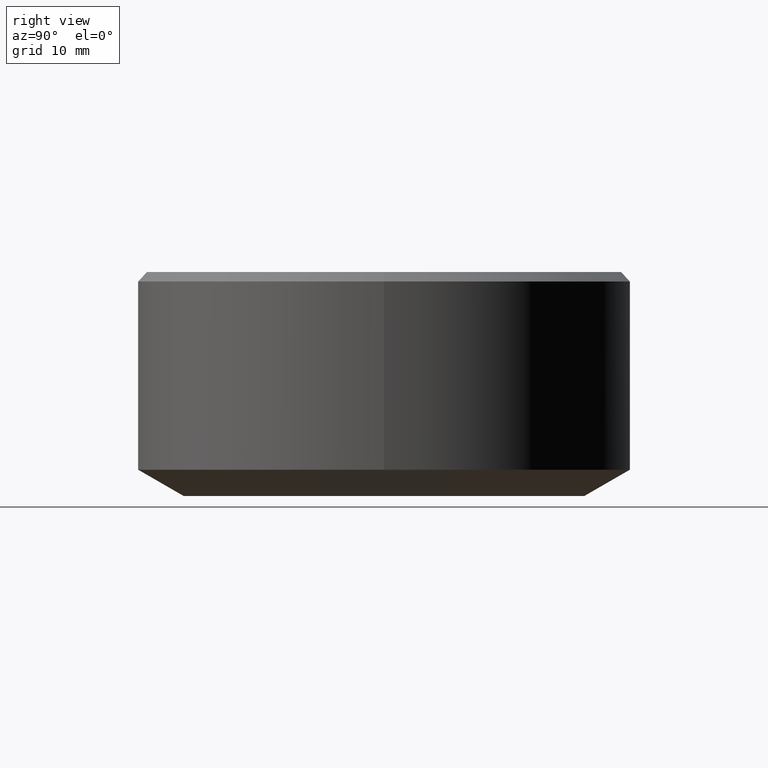
[diagram: clean part render]
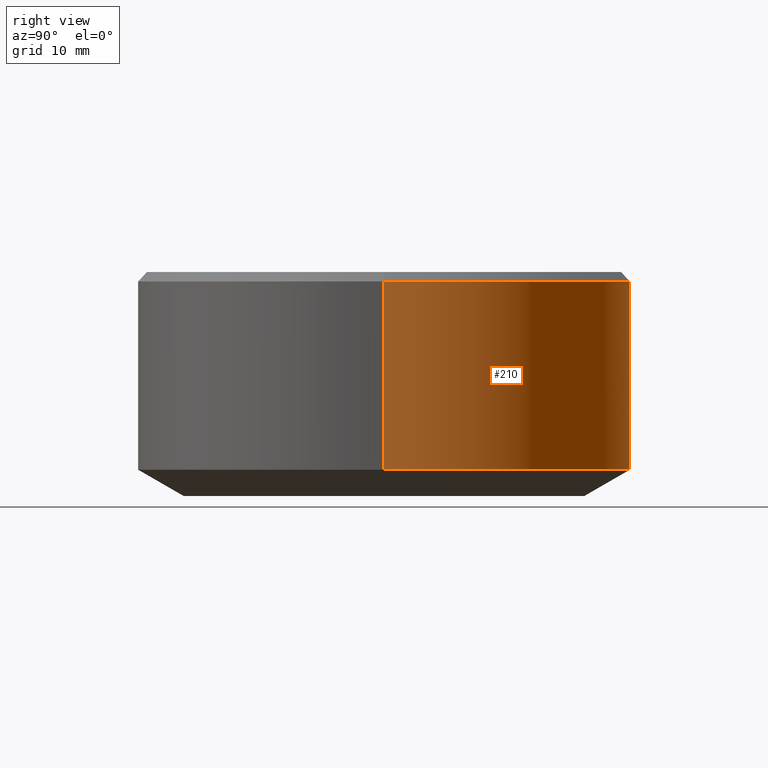
[diagram: same view with one face highlighted and labeled with its STEP entity id]
A machine part, right view. The second image highlights one B-rep face of the part: STEP entity #210.
In plain terms, the highlighted cylindrical surface (partial cylindrical patch) has radius 38.95 mm, axis along (-0, -0, 1).
Its self-contained STEP definition (entity closure, byte-faithful):
#5 = DIRECTION ( 'NONE',  ( 1.000000000000000000, 0.0000000000000000000, 0.0000000000000000000 ) ) ;
#22 = CARTESIAN_POINT ( 'NONE',  ( 38.95000000000000300, 4.769999282678941600E-015, 16.20000000000000600 ) ) ;
#26 = VECTOR ( 'NONE', #205, 1000.000000000000000 ) ;
#38 = CARTESIAN_POINT ( 'NONE',  ( 38.95000000000000300, 0.0000000000000000000, 43.26054273766887100 ) ) ;
#88 = ORIENTED_EDGE ( 'NONE', *, *, #93, .T. ) ;
#89 = AXIS2_PLACEMENT_3D ( 'NONE', #324, #173, #5 ) ;
#93 = EDGE_CURVE ( 'NONE', #219, #211, #110, .T. ) ;
#94 = DIRECTION ( 'NONE',  ( -0.0000000000000000000, -0.0000000000000000000, 1.000000000000000000 ) ) ;
#110 = CIRCLE ( 'NONE', #227, 38.95000000000000300 ) ;
#112 = ORIENTED_EDGE ( 'NONE', *, *, #267, .T. ) ;
#122 = VERTEX_POINT ( 'NONE', #144 ) ;
#143 = CARTESIAN_POINT ( 'NONE',  ( 0.0000000000000000000, 0.0000000000000000000, -13.54307806183471100 ) ) ;
#144 = CARTESIAN_POINT ( 'NONE',  ( -38.95000000000000300, 0.0000000000000000000, 16.20000000000000600 ) ) ;
#145 = ORIENTED_EDGE ( 'NONE', *, *, #238, .F. ) ;
#153 = ORIENTED_EDGE ( 'NONE', *, *, #154, .F. ) ;
#154 = EDGE_CURVE ( 'NONE', #219, #273, #307, .T. ) ;
#173 = DIRECTION ( 'NONE',  ( -0.0000000000000000000, -0.0000000000000000000, 1.000000000000000000 ) ) ;
#174 = DIRECTION ( 'NONE',  ( 1.000000000000000000, 0.0000000000000000000, 0.0000000000000000000 ) ) ;
#180 = CARTESIAN_POINT ( 'NONE',  ( 38.95000000000000300, 0.0000000000000000000, -13.54307806183471100 ) ) ;
#196 = CYLINDRICAL_SURFACE ( 'NONE', #245, 38.95000000000000300 ) ;
#205 = DIRECTION ( 'NONE',  ( -0.0000000000000000000, -0.0000000000000000000, 1.000000000000000000 ) ) ;
#210 = ADVANCED_FACE ( 'NONE', ( #258 ), #196, .T. ) ;
#211 = VERTEX_POINT ( 'NONE', #311 ) ;
#215 = DIRECTION ( 'NONE',  ( -0.0000000000000000000, -0.0000000000000000000, 1.000000000000000000 ) ) ;
#219 = VERTEX_POINT ( 'NONE', #180 ) ;
#227 = AXIS2_PLACEMENT_3D ( 'NONE', #143, #327, #174 ) ;
#238 = EDGE_CURVE ( 'NONE', #273, #122, #320, .T. ) ;
#245 = AXIS2_PLACEMENT_3D ( 'NONE', #257, #94, #284 ) ;
#255 = VECTOR ( 'NONE', #215, 1000.000000000000000 ) ;
#257 = CARTESIAN_POINT ( 'NONE',  ( 0.0000000000000000000, 0.0000000000000000000, 43.26054273766887100 ) ) ;
#258 = FACE_OUTER_BOUND ( 'NONE', #270, .T. ) ;
#267 = EDGE_CURVE ( 'NONE', #211, #122, #326, .T. ) ;
#270 = EDGE_LOOP ( 'NONE', ( #88, #112, #145, #153 ) ) ;
#273 = VERTEX_POINT ( 'NONE', #22 ) ;
#284 = DIRECTION ( 'NONE',  ( 1.000000000000000000, 0.0000000000000000000, 0.0000000000000000000 ) ) ;
#307 = LINE ( 'NONE', #38, #26 ) ;
#311 = CARTESIAN_POINT ( 'NONE',  ( -38.95000000000000300, 4.769999282678941600E-015, -13.54307806183471100 ) ) ;
#316 = CARTESIAN_POINT ( 'NONE',  ( -38.95000000000000300, 4.769999282678941600E-015, 43.26054273766887100 ) ) ;
#320 = CIRCLE ( 'NONE', #89, 38.95000000000000300 ) ;
#324 = CARTESIAN_POINT ( 'NONE',  ( 0.0000000000000000000, 0.0000000000000000000, 16.20000000000000600 ) ) ;
#326 = LINE ( 'NONE', #316, #255 ) ;
#327 = DIRECTION ( 'NONE',  ( -0.0000000000000000000, -0.0000000000000000000, 1.000000000000000000 ) ) ;